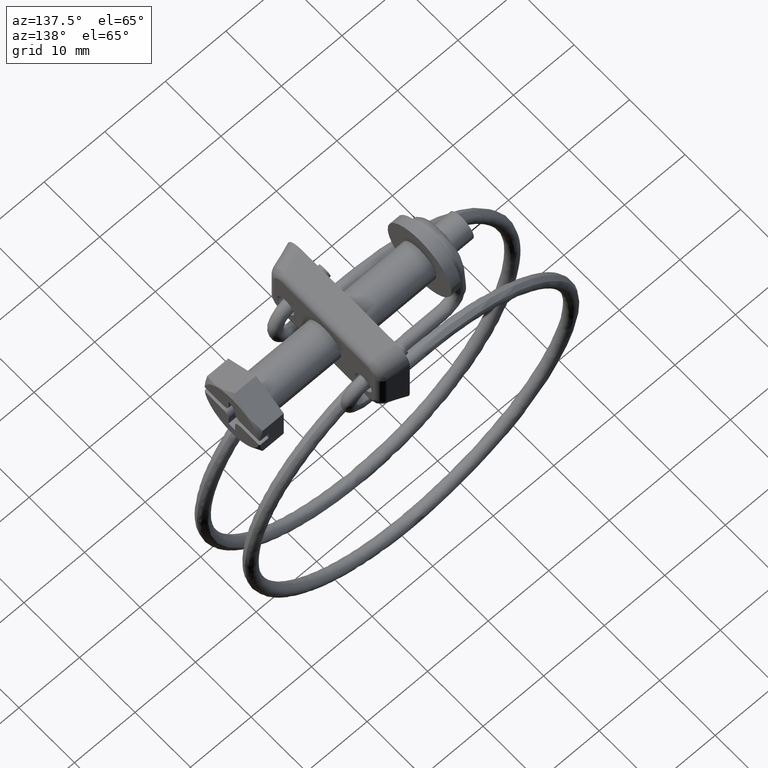
[diagram: clean part render]
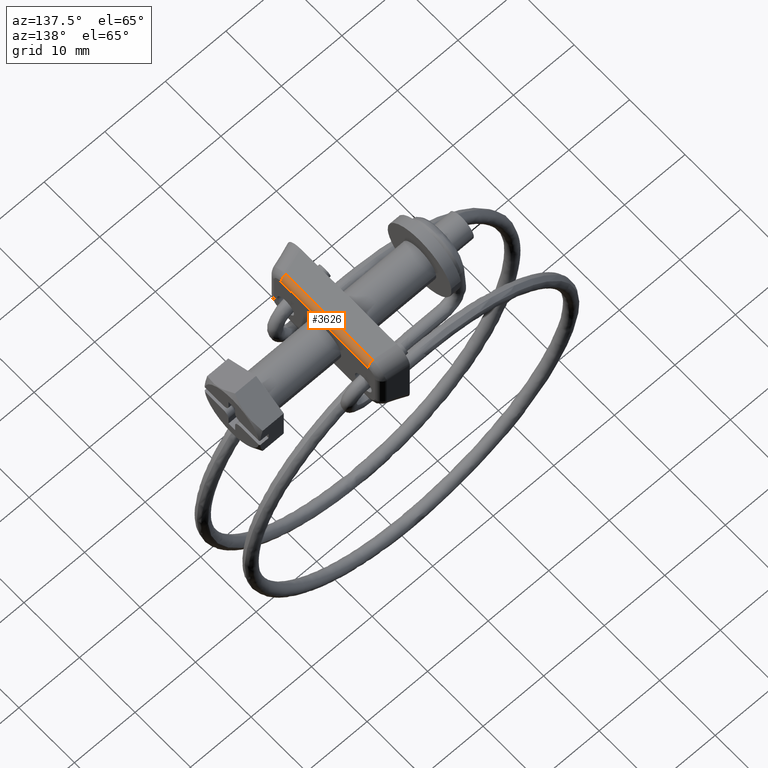
[diagram: same view with one face highlighted and labeled with its STEP entity id]
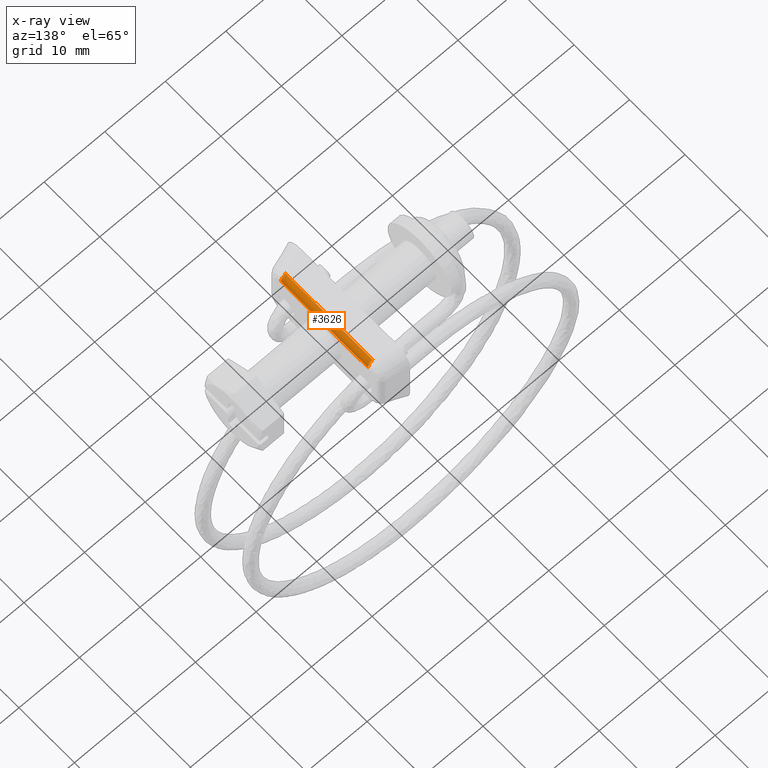
[diagram: x-ray of the same camera — body ghosted, the highlighted face saturated]
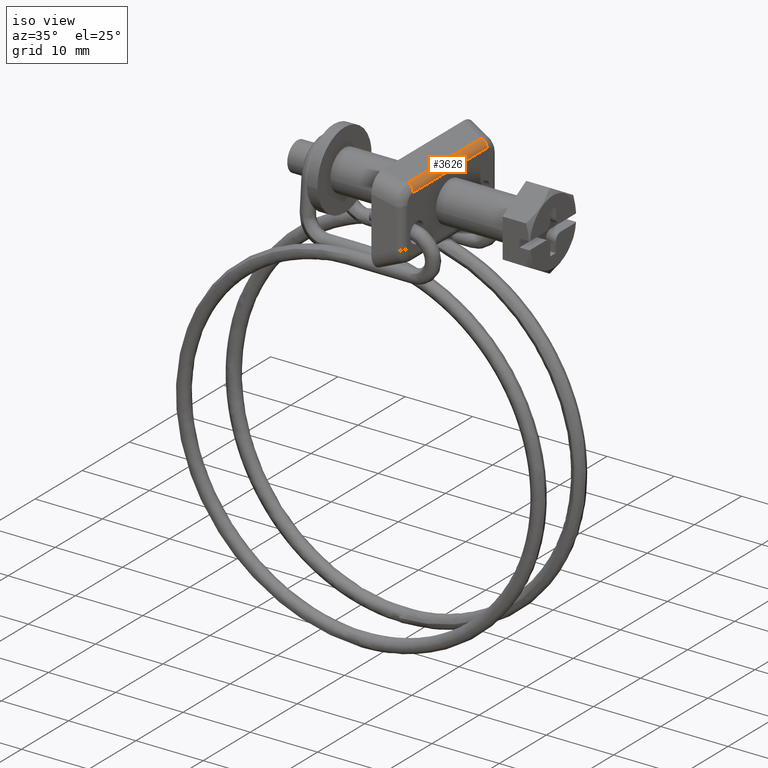
[diagram: same view with one face highlighted and labeled with its STEP entity id]
A machine part, auxiliary view. The second image highlights one B-rep face of the part: STEP entity #3626.
The next image is the same camera in x-ray: the body ghosted, the highlighted face saturated — about 0% of this face is hidden behind the body in this view.
A second angle (iso view) of the same face is appended — the face is thin or edge-on in the first view.
In plain terms, the highlighted face is a freeform B-spline surface patch.
Its self-contained STEP definition (entity closure, byte-faithful):
#3450=CARTESIAN_POINT('',(-35.478652022991000,7.837173833659399,5.291994008621761));
#3451=VERTEX_POINT('',#3450);
#3452=CARTESIAN_POINT('',(-34.700000000000003,7.837173833659399,4.168398938202520));
#3453=VERTEX_POINT('',#3452);
#3454=CARTESIAN_POINT('',(-35.478652022991007,7.837173833659399,5.291994008621726));
#3455=CARTESIAN_POINT('',(-34.700000000000010,7.837173833659399,4.999999620858167));
#3456=CARTESIAN_POINT('',(-34.700000000000003,7.837173833659399,4.168398938202480));
#3464=(BOUNDED_CURVE()B_SPLINE_CURVE(2,(#3454,#3455,#3456),.UNSPECIFIED.,.F.,.U.)CURVE()GEOMETRIC_REPRESENTATION_ITEM()QUASI_UNIFORM_CURVE()RATIONAL_B_SPLINE_CURVE((1.0,0.821925578800830,1.0))REPRESENTATION_ITEM(''));
#3465=EDGE_CURVE('',#3451,#3453,#3464,.T.);
#3582=CARTESIAN_POINT('',(-34.700772540776534,-8.229032525342422,4.125346632289353));
#3583=CARTESIAN_POINT('',(-34.700772540776534,8.238828992634449,4.125346632289353));
#3584=CARTESIAN_POINT('',(-34.667884415512319,-8.229032525342422,5.041449546237937));
#3585=CARTESIAN_POINT('',(-34.667884415512319,8.238828992634447,5.041449546237937));
#3586=CARTESIAN_POINT('',(-35.543093552599927,-8.229032525342422,5.314094267600431));
#3587=CARTESIAN_POINT('',(-35.543093552599927,8.238828992634449,5.314094267600431));
#3595=(BOUNDED_SURFACE()B_SPLINE_SURFACE(1,2,((#3582,#3584,#3586),(#3583,#3585,#3587)),.UNSPECIFIED.,.F.,.F.,.U.)B_SPLINE_SURFACE_WITH_KNOTS((2,2),(3,3),(0.0,16.467861517976871),(0.0,0.982392697220575),.UNSPECIFIED.)GEOMETRIC_REPRESENTATION_ITEM()RATIONAL_B_SPLINE_SURFACE(((1.0,0.791743312453950,0.992666322893073),(1.0,0.791743312453950,0.992666322893073)))REPRESENTATION_ITEM('')SURFACE());
#3596=CARTESIAN_POINT('',(-35.478652022990950,-7.837173833659441,5.291994008621720));
#3597=VERTEX_POINT('',#3596);
#3598=CARTESIAN_POINT('',(-34.700000000000003,-7.837173833659450,4.168398938202480));
#3599=VERTEX_POINT('',#3598);
#3600=CARTESIAN_POINT('',(-35.478652022990957,-7.837173833659450,5.291994008621705));
#3601=CARTESIAN_POINT('',(-34.699999999999996,-7.837173833659450,4.999999620858123));
#3602=CARTESIAN_POINT('',(-34.700000000000003,-7.837173833659450,4.168398938202480));
#3610=(BOUNDED_CURVE()B_SPLINE_CURVE(2,(#3600,#3601,#3602),.UNSPECIFIED.,.F.,.U.)CURVE()GEOMETRIC_REPRESENTATION_ITEM()QUASI_UNIFORM_CURVE()RATIONAL_B_SPLINE_CURVE((1.0,0.821925578800844,1.0))REPRESENTATION_ITEM(''));
#3611=EDGE_CURVE('',#3597,#3599,#3610,.T.);
#3612=ORIENTED_EDGE('',*,*,#3611,.T.);
#3613=CARTESIAN_POINT('',(-34.700000000000003,7.837173833659399,4.168398938202520));
#3614=CARTESIAN_POINT('',(-34.700000000000003,-7.837173833659450,4.168398938202480));
#3615=QUASI_UNIFORM_CURVE('',1,(#3613,#3614),.UNSPECIFIED.,.F.,.U.);
#3616=EDGE_CURVE('',#3453,#3599,#3615,.T.);
#3617=ORIENTED_EDGE('',*,*,#3616,.F.);
#3618=ORIENTED_EDGE('',*,*,#3465,.F.);
#3619=CARTESIAN_POINT('',(-35.478652022990950,-7.837173833659441,5.291994008621720));
#3620=CARTESIAN_POINT('',(-35.478652022991000,7.837173833659399,5.291994008621761));
#3621=QUASI_UNIFORM_CURVE('',1,(#3619,#3620),.UNSPECIFIED.,.F.,.U.);
#3622=EDGE_CURVE('',#3597,#3451,#3621,.T.);
#3623=ORIENTED_EDGE('',*,*,#3622,.F.);
#3624=EDGE_LOOP('',(#3612,#3617,#3618,#3623));
#3625=FACE_OUTER_BOUND('',#3624,.T.);
#3626=ADVANCED_FACE('',(#3625),#3595,.T.);